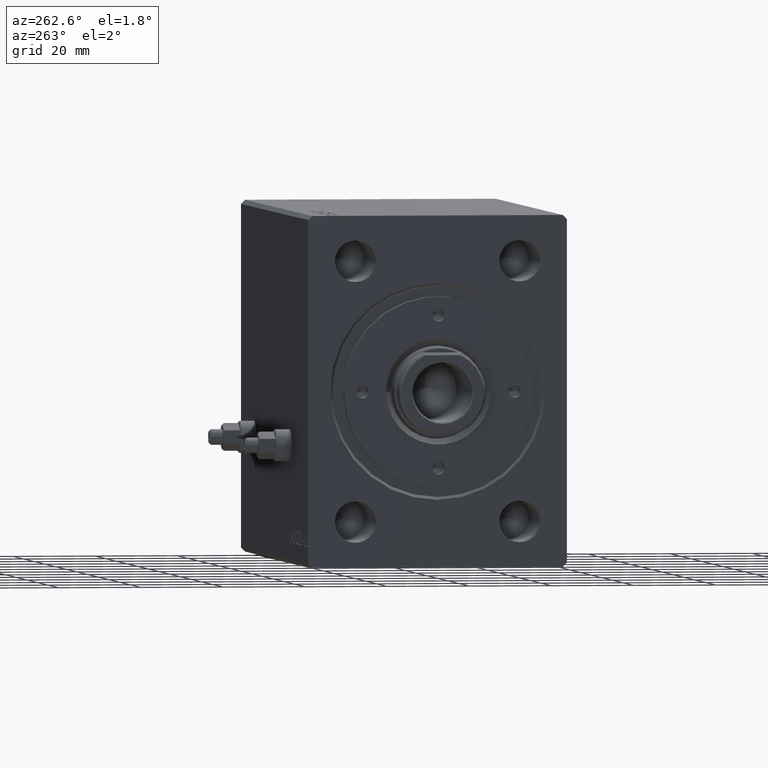
[diagram: clean part render]
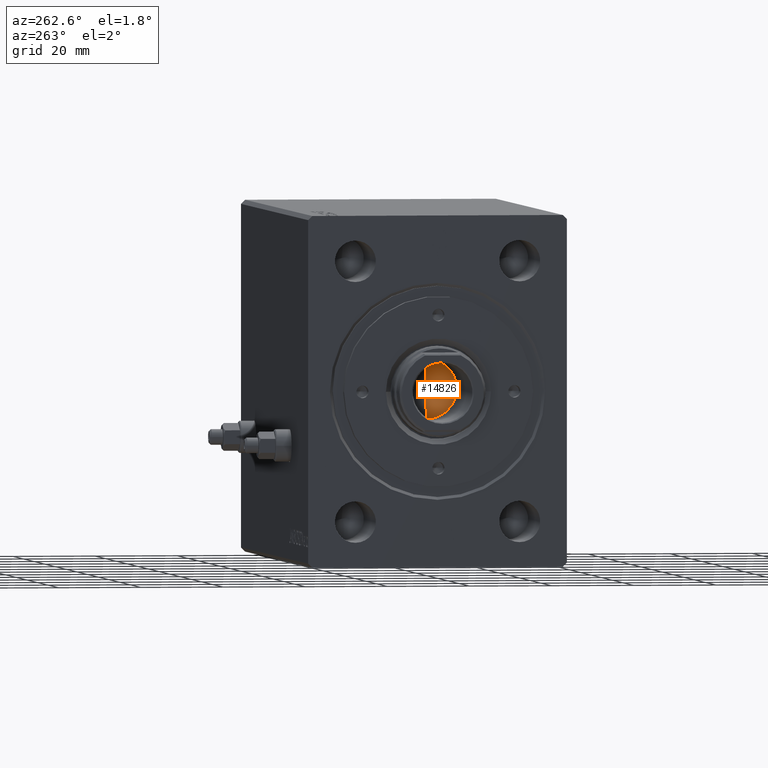
[diagram: same view with one face highlighted and labeled with its STEP entity id]
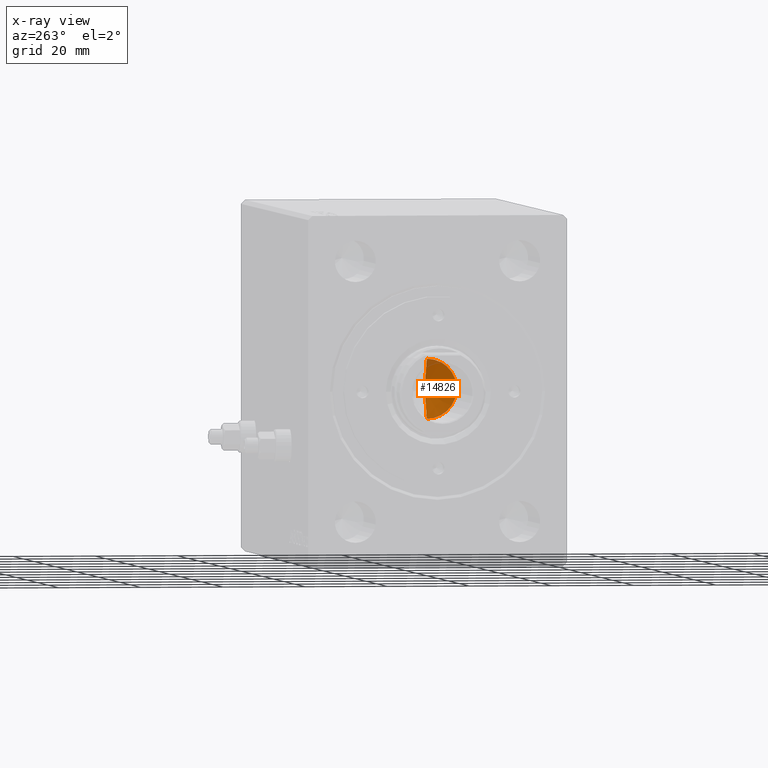
[diagram: x-ray of the same camera — body ghosted, the highlighted face saturated]
A machine part, auxiliary view. The second image highlights one B-rep face of the part: STEP entity #14826.
The next image is the same camera in x-ray: the body ghosted, the highlighted face saturated — about 5% of this face is hidden behind the body in this view.
In plain terms, the highlighted conical surface has half-angle 59 deg.
Its self-contained STEP definition (entity closure, byte-faithful):
#2181 = VERTEX_POINT ( 'NONE', #11409 ) ;
#2999 = DIRECTION ( 'NONE',  ( -0.000000000000000000, -0.000000000000000000, 1.000000000000000000 ) ) ;
#5567 = CIRCLE ( 'NONE', #24458, 7.249999999999994671 ) ;
#7147 = VECTOR ( 'NONE', #38538, 1000.000000000000114 ) ;
#7346 = LINE ( 'NONE', #17595, #31539 ) ;
#9160 = VERTEX_POINT ( 'NONE', #38344 ) ;
#9226 = EDGE_CURVE ( 'NONE', #2181, #9160, #7346, .T. ) ;
#11409 = CARTESIAN_POINT ( 'NONE',  ( -8.301539408693383358E-15, 0.000000000000000000, 86.34376051205019564 ) ) ;
#13072 = ORIENTED_EDGE ( 'NONE', *, *, #9226, .T. ) ;
#13636 = EDGE_CURVE ( 'NONE', #9160, #39328, #5567, .T. ) ;
#14172 = CARTESIAN_POINT ( 'NONE',  ( 7.249999999999994671, 0.000000000000000000, 90.70000000000000284 ) ) ;
#14315 = CONICAL_SURFACE ( 'NONE', #17234, 7.249999999999994671, 1.029744258676654534 ) ;
#14826 = ADVANCED_FACE ( 'NONE', ( #19469 ), #14315, .F. ) ;
#17234 = AXIS2_PLACEMENT_3D ( 'NONE', #19255, #2999, #33148 ) ;
#17595 = CARTESIAN_POINT ( 'NONE',  ( -7.249999999999994671, 8.878689293818304158E-16, 90.70000000000000284 ) ) ;
#18160 = EDGE_CURVE ( 'NONE', #2181, #39328, #38320, .T. ) ;
#19255 = CARTESIAN_POINT ( 'NONE',  ( 0.000000000000000000, 0.000000000000000000, 90.70000000000000284 ) ) ;
#19469 = FACE_OUTER_BOUND ( 'NONE', #40578, .T. ) ;
#24458 = AXIS2_PLACEMENT_3D ( 'NONE', #31987, #35619, #25156 ) ;
#25156 = DIRECTION ( 'NONE',  ( 1.000000000000000000, 0.000000000000000000, 0.000000000000000000 ) ) ;
#31539 = VECTOR ( 'NONE', #44951, 1000.000000000000114 ) ;
#31987 = CARTESIAN_POINT ( 'NONE',  ( 0.000000000000000000, 0.000000000000000000, 90.70000000000000284 ) ) ;
#33148 = DIRECTION ( 'NONE',  ( 1.000000000000000000, 0.000000000000000000, 0.000000000000000000 ) ) ;
#35619 = DIRECTION ( 'NONE',  ( -0.000000000000000000, -0.000000000000000000, 1.000000000000000000 ) ) ;
#35978 = ORIENTED_EDGE ( 'NONE', *, *, #18160, .F. ) ;
#36213 = CARTESIAN_POINT ( 'NONE',  ( 7.249999999999994671, 0.000000000000000000, 90.70000000000000284 ) ) ;
#38320 = LINE ( 'NONE', #14172, #7147 ) ;
#38344 = CARTESIAN_POINT ( 'NONE',  ( -7.249999999999994671, 8.878689293818304158E-16, 90.70000000000000284 ) ) ;
#38538 = DIRECTION ( 'NONE',  ( 0.8571673007021122226, 0.000000000000000000, 0.5150380749100541555 ) ) ;
#39328 = VERTEX_POINT ( 'NONE', #36213 ) ;
#40578 = EDGE_LOOP ( 'NONE', ( #35978, #13072, #41065 ) ) ;
#41065 = ORIENTED_EDGE ( 'NONE', *, *, #13636, .T. ) ;
#44951 = DIRECTION ( 'NONE',  ( -0.8571673007021122226, 1.049727191138618696E-16, 0.5150380749100541555 ) ) ;